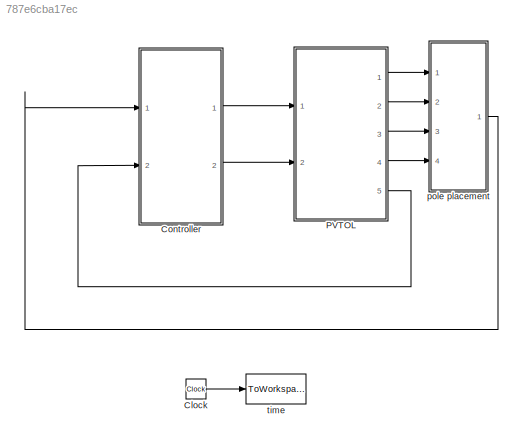
MODEL slx_787e6cba17ec
KIND model
CONFIG AbsTol = auto
CONFIG FixedStep = 0.001
CONFIG MaxStep = auto
CONFIG MinStep = auto
CONFIG RelTol = 1e-3
CONFIG SampleTimeConstraint = Unconstrained
CONFIG Solver = ode3
CONFIG SolverMode = Auto
CONFIG SolverName = ode3
CONFIG StartTime = 0.0
CONFIG StopTime = 4
BLOCK [Clock] Clock
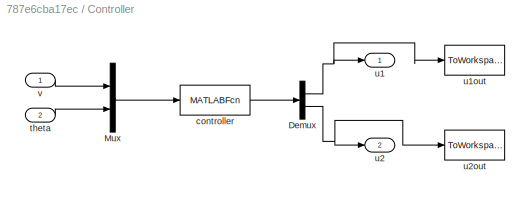
BLOCK [SubSystem] Controller
  Ports = [2, 2]
  RequestExecContextInheritance = off
  Variant = off
BLOCK [Demux] Controller/Demux
  DisplayOption = bar
  Outputs = 2
  Ports = [1, 2]
BLOCK [Mux] Controller/Mux
  DisplayOption = bar
  Inputs = 2
  Ports = [2, 1]
BLOCK [MATLABFcn] Controller/controller
  MATLABFcn = mod1control(u)
  Ports = [1, 1]
BLOCK [Inport] Controller/theta
  IconDisplay = Port number
  Port = 2
BLOCK [Outport] Controller/u1
  IconDisplay = Port number
BLOCK [ToWorkspace] Controller/u1out
  FixptAsFi = on
  MaxDataPoints = inf
  Ports = [1]
  SampleTime = -1
  Save2DSignal = 3-D array (concatenate along third dimension)
  VariableName = u1
BLOCK [Outport] Controller/u2
  IconDisplay = Port number
  Port = 2
BLOCK [ToWorkspace] Controller/u2out
  FixptAsFi = on
  MaxDataPoints = inf
  Ports = [1]
  SampleTime = -1
  Save2DSignal = 3-D array (concatenate along third dimension)
  VariableName = u2
BLOCK [Inport] Controller/v
  IconDisplay = Port number
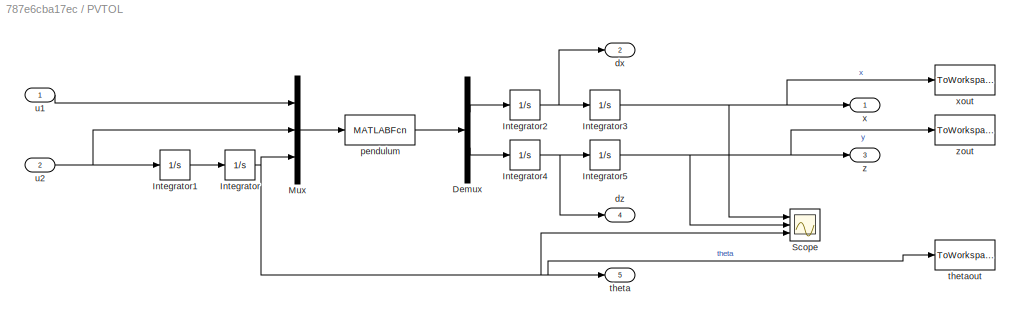
BLOCK [SubSystem] PVTOL
  Ports = [2, 5]
  RequestExecContextInheritance = off
  Variant = off
BLOCK [Demux] PVTOL/Demux
  DisplayOption = bar
  Outputs = 2
  Ports = [1, 2]
BLOCK [Integrator] PVTOL/Integrator
  InitialCondition = theta0
  Ports = [1, 1]
BLOCK [Integrator] PVTOL/Integrator1
  Ports = [1, 1]
BLOCK [Integrator] PVTOL/Integrator2
  Ports = [1, 1]
BLOCK [Integrator] PVTOL/Integrator3
  InitialCondition = x0
  Ports = [1, 1]
BLOCK [Integrator] PVTOL/Integrator4
  Ports = [1, 1]
BLOCK [Integrator] PVTOL/Integrator5
  InitialCondition = z0
  Ports = [1, 1]
BLOCK [Mux] PVTOL/Mux
  DisplayOption = bar
  Inputs = 3
  Ports = [3, 1]
BLOCK [Scope] PVTOL/Scope
  NumInputPorts = 3
  Ports = [3]
  ScopeSpecificationString = Simulink.scopes.TimeScopeBlockCfg('CurrentConfiguration', extmgr.ConfigurationSet(extmgr.Configuration('Core','General UI',true),extmgr.Configuration('Core','Source UI',true),extmgr.Configuration('Sources','WiredSimulink',true),extmgr.Configuration('Visuals','Time Domain',true,'SerializedDisplays',{struct('MinYLimReal','0.9375','MaxYLimReal','1.5625','YLabelReal','','MinYLimMag','0.9375','MaxYLimM...<+2665ch>
BLOCK [Outport] PVTOL/dx
  IconDisplay = Port number
  Port = 2
BLOCK [Outport] PVTOL/dz
  IconDisplay = Port number
  Port = 4
BLOCK [MATLABFcn] PVTOL/pendulum
  MATLABFcn = pvtol(u)
  OutputDimensions = 2
  Ports = [1, 1]
BLOCK [Outport] PVTOL/theta
  IconDisplay = Port number
  Port = 5
BLOCK [ToWorkspace] PVTOL/thetaout
  FixptAsFi = on
  MaxDataPoints = inf
  Ports = [1]
  SampleTime = -1
  Save2DSignal = 3-D array (concatenate along third dimension)
  VariableName = theta
BLOCK [Inport] PVTOL/u1
  IconDisplay = Port number
BLOCK [Inport] PVTOL/u2
  IconDisplay = Port number
  Port = 2
BLOCK [Outport] PVTOL/x
  IconDisplay = Port number
BLOCK [ToWorkspace] PVTOL/xout
  FixptAsFi = on
  MaxDataPoints = inf
  Ports = [1]
  SampleTime = -1
  Save2DSignal = 3-D array (concatenate along third dimension)
  VariableName = x
BLOCK [Outport] PVTOL/z
  IconDisplay = Port number
  Port = 3
BLOCK [ToWorkspace] PVTOL/zout
  FixptAsFi = on
  MaxDataPoints = inf
  Ports = [1]
  SampleTime = -1
  Save2DSignal = 3-D array (concatenate along third dimension)
  VariableName = z
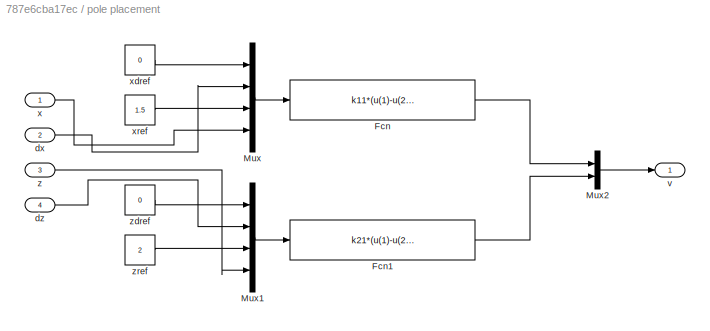
BLOCK [SubSystem] pole placement
  Ports = [4, 1]
  RequestExecContextInheritance = off
  Variant = off
BLOCK [Fcn] pole placement/Fcn
  Expr = k11*(u(1)-u(2))+k12*(u(3)-u(4))
BLOCK [Fcn] pole placement/Fcn1
  Expr = k21*(u(1)-u(2))+k22*(u(3)-u(4))
BLOCK [Mux] pole placement/Mux
  DisplayOption = bar
  Ports = [4, 1]
BLOCK [Mux] pole placement/Mux1
  DisplayOption = bar
  Ports = [4, 1]
BLOCK [Mux] pole placement/Mux2
  DisplayOption = bar
  Inputs = 2
  Ports = [2, 1]
BLOCK [Inport] pole placement/dx
  IconDisplay = Port number
  Port = 2
BLOCK [Inport] pole placement/dz
  IconDisplay = Port number
  Port = 4
BLOCK [Outport] pole placement/v
  IconDisplay = Port number
BLOCK [Inport] pole placement/x
  IconDisplay = Port number
BLOCK [Constant] pole placement/xdref
  Value = 0
BLOCK [Constant] pole placement/xref
  Value = 1.5
BLOCK [Inport] pole placement/z
  IconDisplay = Port number
  Port = 3
BLOCK [Constant] pole placement/zdref
  Value = 0
BLOCK [Constant] pole placement/zref
  Value = 2
BLOCK [ToWorkspace] time
  FixptAsFi = on
  MaxDataPoints = inf
  Ports = [1]
  SampleTime = -1
  Save2DSignal = 3-D array (concatenate along third dimension)
  VariableName = t
LINE Clock:1 -> time:1
NET Controller/Demux:1 -> Controller/u1:1, Controller/u1out:1
NET Controller/Demux:2 -> Controller/u2:1, Controller/u2out:1
LINE Controller/Mux:1 -> Controller/controller:1
LINE Controller/controller:1 -> Controller/Demux:1
LINE Controller/theta:1 -> Controller/Mux:2
LINE Controller/v:1 -> Controller/Mux:1
LINE Controller:1 -> PVTOL:1
LINE Controller:2 -> PVTOL:2
LINE PVTOL/Demux:1 -> PVTOL/Integrator2:1
LINE PVTOL/Demux:2 -> PVTOL/Integrator4:1
LINE PVTOL/Integrator1:1 -> PVTOL/Integrator:1
NET PVTOL/Integrator2:1 -> PVTOL/Integrator3:1, PVTOL/dx:1
NET PVTOL/Integrator3:1 -> PVTOL/Scope:1, PVTOL/x:1, PVTOL/xout:1
NET PVTOL/Integrator4:1 -> PVTOL/Integrator5:1, PVTOL/dz:1
NET PVTOL/Integrator5:1 -> PVTOL/Scope:2, PVTOL/z:1, PVTOL/zout:1
NET PVTOL/Integrator:1 -> PVTOL/Mux:3, PVTOL/Scope:3, PVTOL/theta:1, PVTOL/thetaout:1
LINE PVTOL/Mux:1 -> PVTOL/pendulum:1
LINE PVTOL/pendulum:1 -> PVTOL/Demux:1
LINE PVTOL/u1:1 -> PVTOL/Mux:1
NET PVTOL/u2:1 -> PVTOL/Integrator1:1, PVTOL/Mux:2
LINE PVTOL:1 -> pole placement:1
LINE PVTOL:2 -> pole placement:2
LINE PVTOL:3 -> pole placement:3
LINE PVTOL:4 -> pole placement:4
LINE PVTOL:5 -> Controller:2
LINE pole placement/Fcn1:1 -> pole placement/Mux2:2
LINE pole placement/Fcn:1 -> pole placement/Mux2:1
LINE pole placement/Mux1:1 -> pole placement/Fcn1:1
LINE pole placement/Mux2:1 -> pole placement/v:1
LINE pole placement/Mux:1 -> pole placement/Fcn:1
LINE pole placement/dx:1 -> pole placement/Mux:2
LINE pole placement/dz:1 -> pole placement/Mux1:2
LINE pole placement/x:1 -> pole placement/Mux:4
LINE pole placement/xdref:1 -> pole placement/Mux:1
LINE pole placement/xref:1 -> pole placement/Mux:3
LINE pole placement/z:1 -> pole placement/Mux1:4
LINE pole placement/zdref:1 -> pole placement/Mux1:1
LINE pole placement/zref:1 -> pole placement/Mux1:3
LINE pole placement:1 -> Controller:1
note: NET lines group one-source signal fan-out (src -> all destinations, sorted); 1:1 wires keep LINE
